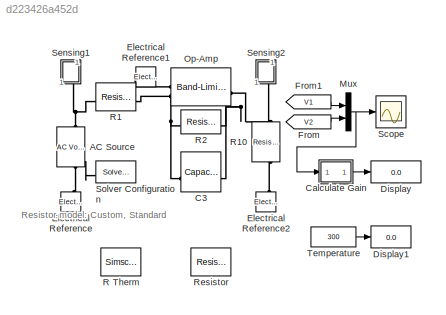
MODEL slx_d223426a452d
KIND model
CONFIG AbsTol = 1e-4
CONFIG EnableMultiTasking = on
CONFIG InitFcn = Temperature = str2num(get_param([bdroot '/Temperature'],'Value'));
CONFIG MaxStep = 0.01
CONFIG PreLoadFcn = Temperature = 300;
CONFIG SolverName = ode15s
CONFIG StopFcn = fg = max(LUT_Resistor_DATA.signals.values(:,2))/max(LUT_Resistor_DATA.signals.values(:,1));\ndisp(['Temperature = ' num2str(Temperature) '; Gain = ' num2str(fg)]);\n
CONFIG StopTime = 0.5
BLOCK [Reference] AC Source  REF=fl_lib/Electrical/Electrical Sources/AC Voltage Source
  NameLocation = right
  SourceBlock = fl_lib/Electrical/Electrical Sources/AC Voltage Source
  SourceType = AC Voltage Source
BLOCK [Reference] C3  REF=fl_lib/Electrical/Electrical Elements/Capacitor
  NameLocation = top
  SourceBlock = fl_lib/Electrical/Electrical Elements/Capacitor
  SourceType = Capacitor
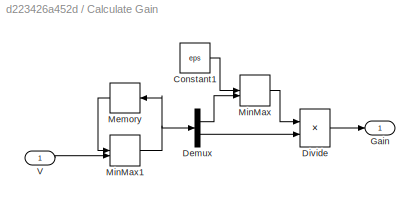
BLOCK [SubSystem] Calculate Gain
BLOCK [Constant] Calculate Gain/Constant1
  Value = eps
BLOCK [Demux] Calculate Gain/Demux
  Outputs = 2
BLOCK [Product] Calculate Gain/Divide
  Inputs = /*
BLOCK [Outport] Calculate Gain/Gain
  VectorParamsAs1DForOutWhenUnconnected = off
BLOCK [Memory] Calculate Gain/Memory
  InitialCondition = [0 0]
BLOCK [MinMax] Calculate Gain/MinMax
  Function = max
  Inputs = 2
BLOCK [MinMax] Calculate Gain/MinMax1
  Function = max
  Inputs = 2
BLOCK [Inport] Calculate Gain/V
  NameLocation = top
BLOCK [Display] Display
  Decimation = 1
BLOCK [Display] Display1
  Decimation = 1
BLOCK [Reference] Electrical Reference  REF=fl_lib/Electrical/Electrical Elements/Electrical Reference
  NameLocation = left
  SourceBlock = fl_lib/Electrical/Electrical Elements/Electrical Reference
  SourceType = Electrical Reference
BLOCK [Reference] Electrical Reference1  REF=fl_lib/Electrical/Electrical Elements/Electrical Reference
  NameLocation = top
  SourceBlock = fl_lib/Electrical/Electrical Elements/Electrical Reference
  SourceType = Electrical Reference
BLOCK [Reference] Electrical Reference2  REF=fl_lib/Electrical/Electrical Elements/Electrical Reference
  NameLocation = right
  SourceBlock = fl_lib/Electrical/Electrical Elements/Electrical Reference
  SourceType = Electrical Reference
BLOCK [From] From
  GotoTag = V2
  TagVisibility = global
BLOCK [From] From1
  GotoTag = V1
  TagVisibility = global
BLOCK [Mux] Mux
  DisplayOption = bar
  Inputs = 2
BLOCK [Reference] Op-Amp  REF=ee_lib/Integrated Circuits/Band-Limited Op-Amp
  NameLocation = top
  SourceBlock = ee_lib/Integrated Circuits/Band-Limited Op-Amp
  SourceType = Band-Limited Op-Amp
BLOCK [SimscapeComponentBlock] R Therm
  ClassName = MyResistor
  ComponentPath = MyResistor.MyResistor
  ComponentVariantNames = MyResistor
  ComponentVariants = MyResistor.MyResistor
  CopyFcn = simscape.sscblock.internal.componentBlockCallback(gcbh,'COPY')
  MaskType = R Therm
  PreCopyFcn = simscape.sscblock.internal.componentBlockCallback(gcbh,'PRECOPY')
  PreDeleteFcn = simscape.sscblock.internal.componentBlockCallback(gcbh,'PREDELETE')
  R = 10
  R_conf = compiletime
  R_unit = kOhm
  SchemaVersion = 1
  SourceFile = MyResistor.MyResistor
  T = Temperature
  T0 = 300
  T0_conf = compiletime
  T0_unit = K
  T_conf = compiletime
  T_unit = K
  a = 0.001
  a_conf = compiletime
  a_unit = 1/K
  i = 0
  i_nominal_specify = off
  i_nominal_unit = A
  i_nominal_value = 1
  i_priority = None
  i_specify = off
  i_unit = A
  v = 0
  v_nominal_specify = off
  v_nominal_unit = V
  v_nominal_value = 1
  v_priority = None
  v_specify = off
  v_unit = V
BLOCK [Reference] R1  REF=fl_lib/Electrical/Electrical Elements/Resistor
  SourceBlock = fl_lib/Electrical/Electrical Elements/Resistor
  SourceType = Resistor
BLOCK [Reference] R10  REF=fl_lib/Electrical/Electrical Elements/Resistor
  NameLocation = right
  SourceBlock = fl_lib/Electrical/Electrical Elements/Resistor
  SourceType = Resistor
BLOCK [Reference] R2  REF=fl_lib/Electrical/Electrical Elements/Resistor
  SourceBlock = fl_lib/Electrical/Electrical Elements/Resistor
  SourceType = Resistor
BLOCK [Reference] Resistor  REF=fl_lib/Electrical/Electrical Elements/Resistor
  SourceBlock = fl_lib/Electrical/Electrical Elements/Resistor
  SourceType = Resistor
BLOCK [Scope] Scope
  ActiveDisplayYMaximum = 6.25
  ActiveDisplayYMinimum = -6.24999
  DataLogging = on
  DataLoggingDecimation = 1
  DataLoggingLimitDataPoints = on
  DataLoggingSaveFormat = Structure With Time
  DataLoggingVariableName = LUT_Resistor_DATA
  Floating = off
  GraphicalSettings = {"GraphicalSettings":{"LegacySettings":true,"Style":{"AxesScalingProperties":{"ScaleAxesLimitsAtStop":false},"Style":{"AxesColor":"[0 0 0]","BackgroundColor":"[0.501960784313725 0.501960784313725 0.501960784313725]","ChannelNames":[""],"ColorOrder":"[1 1 0.0666666666666667;0.0745098039215686 0.623529411764706 1;1 0.411764705882353 0.16078431372549;0.392156862745098 0.831372549019608 0.074509803921...<+632ch>
  MultipleDisplayCache = [{"MaxYLimMag":6.25,"MaxYLimReal":6.25,"MinYLimMag":0,"MinYLimReal":-6.24999,"PlotAsMagnitudePhase":false,"ShowGrid":true,"ShowLegend":false,"Title":"%<SignalLabel>","YLabel":""}]
  NumInputPorts = 1
  WasSavedAsWebScope = on
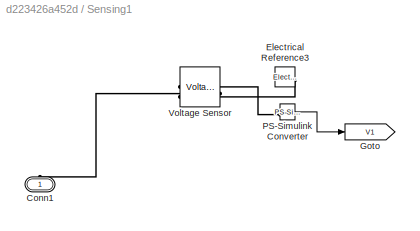
BLOCK [SubSystem] Sensing1
  NameLocation = right
BLOCK [PMIOPort] Sensing1/Conn1
  NameLocation = right
  Side = Left
BLOCK [Reference] Sensing1/Electrical Reference3  REF=fl_lib/Electrical/Electrical Elements/Electrical Reference
  NameLocation = top
  SourceBlock = fl_lib/Electrical/Electrical Elements/Electrical Reference
  SourceType = Electrical Reference
BLOCK [Goto] Sensing1/Goto
  GotoTag = V1
  TagVisibility = global
BLOCK [Reference] Sensing1/PS-Simulink Converter  REF=nesl_utility/PS-Simulink
Converter
  NameLocation = top
  SourceBlock = nesl_utility/PS-Simulink\nConverter
  SourceType = PS-Simulink\nConverter
BLOCK [Reference] Sensing1/Voltage Sensor  REF=fl_lib/Electrical/Electrical Sensors/Voltage Sensor
  NameLocation = top
  SourceBlock = fl_lib/Electrical/Electrical Sensors/Voltage Sensor
  SourceType = Voltage Sensor
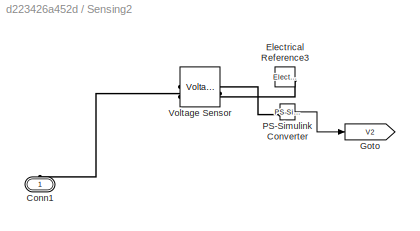
BLOCK [SubSystem] Sensing2
  NameLocation = right
BLOCK [PMIOPort] Sensing2/Conn1
  NameLocation = right
  Side = Left
BLOCK [Reference] Sensing2/Electrical Reference3  REF=fl_lib/Electrical/Electrical Elements/Electrical Reference
  NameLocation = top
  SourceBlock = fl_lib/Electrical/Electrical Elements/Electrical Reference
  SourceType = Electrical Reference
BLOCK [Goto] Sensing2/Goto
  GotoTag = V2
  TagVisibility = global
BLOCK [Reference] Sensing2/PS-Simulink Converter  REF=nesl_utility/PS-Simulink
Converter
  NameLocation = top
  SourceBlock = nesl_utility/PS-Simulink\nConverter
  SourceType = PS-Simulink\nConverter
BLOCK [Reference] Sensing2/Voltage Sensor  REF=fl_lib/Electrical/Electrical Sensors/Voltage Sensor
  NameLocation = top
  SourceBlock = fl_lib/Electrical/Electrical Sensors/Voltage Sensor
  SourceType = Voltage Sensor
BLOCK [Reference] Solver Configuration  REF=nesl_utility/Solver
Configuration
  NameLocation = top
  SourceBlock = nesl_utility/Solver\nConfiguration
  SourceType = Solver\nConfiguration
BLOCK [Constant] Temperature
  Value = 300
ANNOTATION (root): Resistor model: Custom , Standard
LINE Calculate Gain/Constant1:1 -> Calculate Gain/MinMax:1
LINE Calculate Gain/Demux:1 -> Calculate Gain/MinMax:2
LINE Calculate Gain/Demux:2 -> Calculate Gain/Divide:2
LINE Calculate Gain/Divide:1 -> Calculate Gain/Gain:1
LINE Calculate Gain/Memory:1 -> Calculate Gain/MinMax1:1
NET Calculate Gain/MinMax1:1 -> Calculate Gain/Demux:1, Calculate Gain/Memory:1
LINE Calculate Gain/MinMax:1 -> Calculate Gain/Divide:1
LINE Calculate Gain/V:1 -> Calculate Gain/MinMax1:2
LINE Calculate Gain:1 -> Display:1
LINE From1:1 -> Mux:1
LINE From:1 -> Mux:2
NET Mux:1 -> Calculate Gain:1, Scope:1
LINE Sensing1/PS-Simulink Converter:1 -> Sensing1/Goto:1
LINE Sensing2/PS-Simulink Converter:1 -> Sensing2/Goto:1
LINE Temperature:1 -> Display1:1
PNET net1: AC Source:LConn1 -- R1:LConn1 -- Sensing1:LConn1
PNET net2: AC Source:RConn1 -- Electrical Reference:LConn1 -- Solver Configuration:RConn1
PNET net3: C3:LConn1 -- Op-Amp:LConn2 -- R1:RConn1 -- R2:LConn1
PNET net4: C3:RConn1 -- Op-Amp:RConn1 -- R10:LConn1 -- R2:RConn1 -- Sensing2:LConn1
PLINE Electrical Reference1:LConn1 -- Op-Amp:LConn1
PLINE Electrical Reference2:LConn1 -- R10:RConn1
PLINE Sensing1/Conn1:RConn1 -- Sensing1/Voltage Sensor:LConn1
PLINE Sensing1/Electrical Reference3:LConn1 -- Sensing1/Voltage Sensor:RConn2
PLINE Sensing1/PS-Simulink Converter:LConn1 -- Sensing1/Voltage Sensor:RConn1
PLINE Sensing2/Conn1:RConn1 -- Sensing2/Voltage Sensor:LConn1
PLINE Sensing2/Electrical Reference3:LConn1 -- Sensing2/Voltage Sensor:RConn2
PLINE Sensing2/PS-Simulink Converter:LConn1 -- Sensing2/Voltage Sensor:RConn1
note: NET lines group one-source signal fan-out (src -> all destinations, sorted); 1:1 wires keep LINE; PNET lines group multi-terminal physical nets as a canonical sorted terminal list (undirected conserving connections); 2-terminal nets keep the pairwise PLINE form
